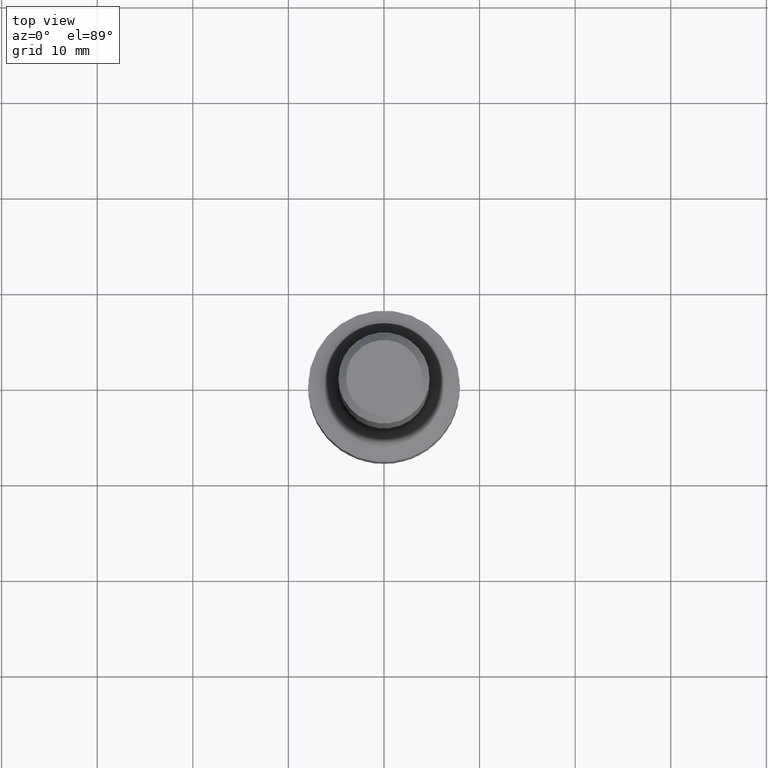
[diagram: clean part render]
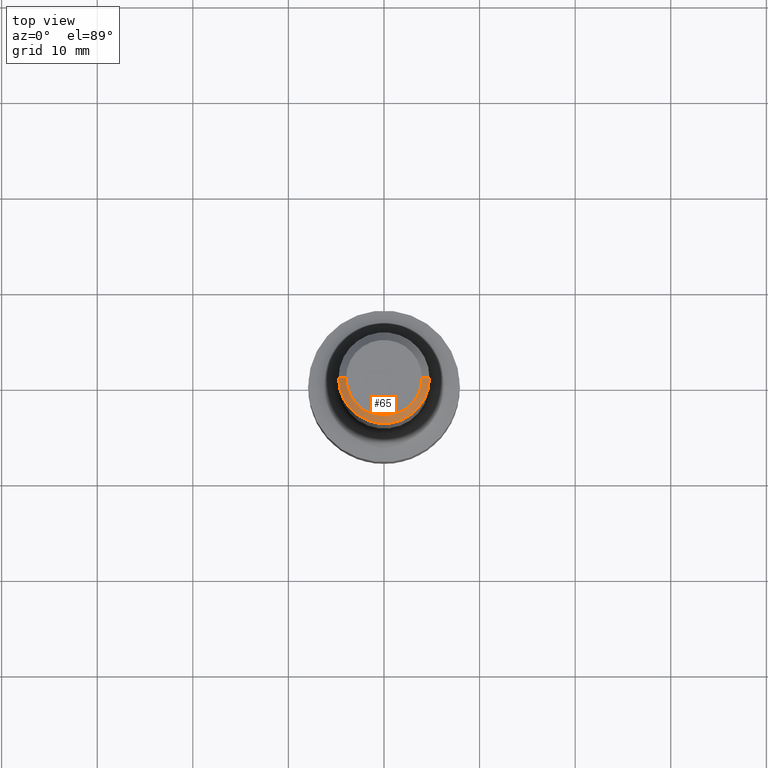
[diagram: same view with one face highlighted and labeled with its STEP entity id]
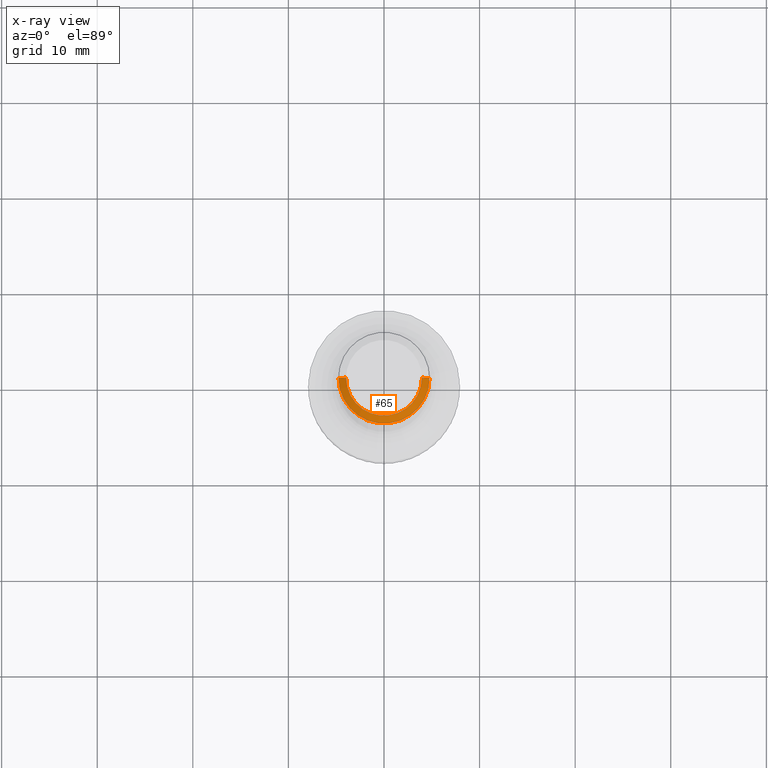
[diagram: x-ray of the same camera — body ghosted, the highlighted face saturated]
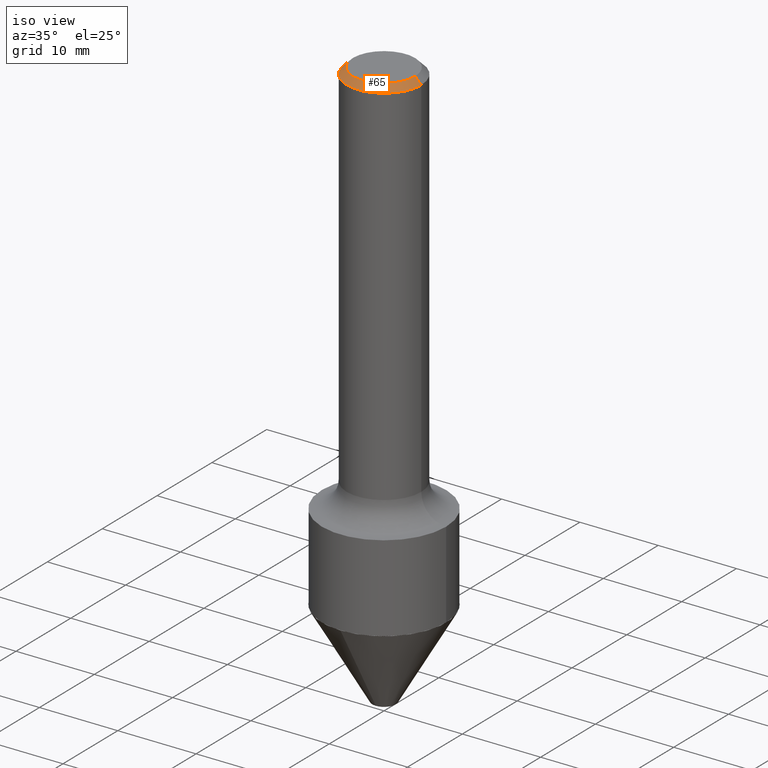
[diagram: same view with one face highlighted and labeled with its STEP entity id]
A machine part, top view. The second image highlights one B-rep face of the part: STEP entity #65.
The next image is the same camera in x-ray: the body ghosted, the highlighted face saturated — about 0% of this face is hidden behind the body in this view.
A second angle (iso view) of the same face is appended — the face is thin or edge-on in the first view.
In plain terms, the highlighted conical surface has half-angle 45 deg.
Its self-contained STEP definition (entity closure, byte-faithful):
#10 = CARTESIAN_POINT ( 'NONE',  ( 7.629862675297681829E-31, -1.089342177719069380E-16, -0.03120000000000022755 ) ) ;
#13 = CARTESIAN_POINT ( 'NONE',  ( -1.871772216193331159E-46, 2.672394653685611172E-32, 7.654042494670965249E-18 ) ) ;
#34 = AXIS2_PLACEMENT_3D ( 'NONE', #507, #422, #345 ) ;
#44 = CARTESIAN_POINT ( 'NONE',  ( -0.1875000000000000278, 1.200371284294268058E-15, -0.03120000000000022755 ) ) ;
#65 = ADVANCED_FACE ( 'NONE', ( #346 ), #508, .T. ) ;
#80 = VECTOR ( 'NONE', #93, 39.37007874015748143 ) ;
#81 = LINE ( 'NONE', #44, #80 ) ;
#93 = DIRECTION ( 'NONE',  ( -0.7071067811865444641, 2.468850131082224717E-15, -0.7071067811865505703 ) ) ;
#96 = VERTEX_POINT ( 'NONE', #377 ) ;
#122 = DIRECTION ( 'NONE',  ( -2.445468806185136597E-29, 3.491481338843145583E-15, 1.000000000000000000 ) ) ;
#126 = DIRECTION ( 'NONE',  ( 1.000000000000000000, -6.982962677686265922E-15, 0.000000000000000000 ) ) ;
#156 = AXIS2_PLACEMENT_3D ( 'NONE', #13, #122, #402 ) ;
#159 = EDGE_CURVE ( 'NONE', #410, #96, #354, .T. ) ;
#175 = ORIENTED_EDGE ( 'NONE', *, *, #384, .F. ) ;
#212 = ORIENTED_EDGE ( 'NONE', *, *, #159, .F. ) ;
#233 = CIRCLE ( 'NONE', #406, 0.1875000000000000278 ) ;
#290 = VERTEX_POINT ( 'NONE', #394 ) ;
#345 = DIRECTION ( 'NONE',  ( -1.000000000000000000, 6.982962677686265922E-15, 0.000000000000000000 ) ) ;
#346 = FACE_OUTER_BOUND ( 'NONE', #437, .T. ) ;
#347 = VECTOR ( 'NONE', #433, 39.37007874015748143 ) ;
#354 = LINE ( 'NONE', #516, #347 ) ;
#372 = ORIENTED_EDGE ( 'NONE', *, *, #401, .T. ) ;
#377 = CARTESIAN_POINT ( 'NONE',  ( 0.1875000000000000278, -1.395277592354069315E-15, -0.03120000000000022755 ) ) ;
#384 = EDGE_CURVE ( 'NONE', #290, #410, #478, .T. ) ;
#394 = CARTESIAN_POINT ( 'NONE',  ( -0.1563000000000000500, 1.145904175408315963E-15, 7.654042494663141351E-18 ) ) ;
#401 = EDGE_CURVE ( 'NONE', #477, #96, #233, .T. ) ;
#402 = DIRECTION ( 'NONE',  ( 1.000000000000000000, -6.982962677686266711E-15, 4.876046809215620980E-29 ) ) ;
#406 = AXIS2_PLACEMENT_3D ( 'NONE', #10, #443, #126 ) ;
#410 = VERTEX_POINT ( 'NONE', #476 ) ;
#422 = DIRECTION ( 'NONE',  ( 2.445468806185136597E-29, -3.491481338843145583E-15, -1.000000000000000000 ) ) ;
#433 = DIRECTION ( 'NONE',  ( 0.7071067811865444641, -7.319954787623245001E-15, -0.7071067811865505703 ) ) ;
#434 = ORIENTED_EDGE ( 'NONE', *, *, #462, .T. ) ;
#437 = EDGE_LOOP ( 'NONE', ( #212, #175, #434, #372 ) ) ;
#443 = DIRECTION ( 'NONE',  ( -2.445468806185136597E-29, 3.491481338843145583E-15, 1.000000000000000000 ) ) ;
#449 = CARTESIAN_POINT ( 'NONE',  ( -0.1875000000000000278, 1.200371284294268058E-15, -0.03120000000000022755 ) ) ;
#462 = EDGE_CURVE ( 'NONE', #290, #477, #81, .T. ) ;
#476 = CARTESIAN_POINT ( 'NONE',  ( 0.1563000000000000500, -1.233786714702880152E-15, 7.654042494679095754E-18 ) ) ;
#477 = VERTEX_POINT ( 'NONE', #449 ) ;
#478 = CIRCLE ( 'NONE', #156, 0.1563000000000000500 ) ;
#507 = CARTESIAN_POINT ( 'NONE',  ( 7.629862675297681829E-31, -1.089342177719069380E-16, -0.03120000000000022755 ) ) ;
#508 = CONICAL_SURFACE ( 'NONE', #34, 0.1875000000000000278, 0.7853981633974439491 ) ;
#516 = CARTESIAN_POINT ( 'NONE',  ( 0.1875000000000000278, -1.395277592354069315E-15, -0.03120000000000022755 ) ) ;